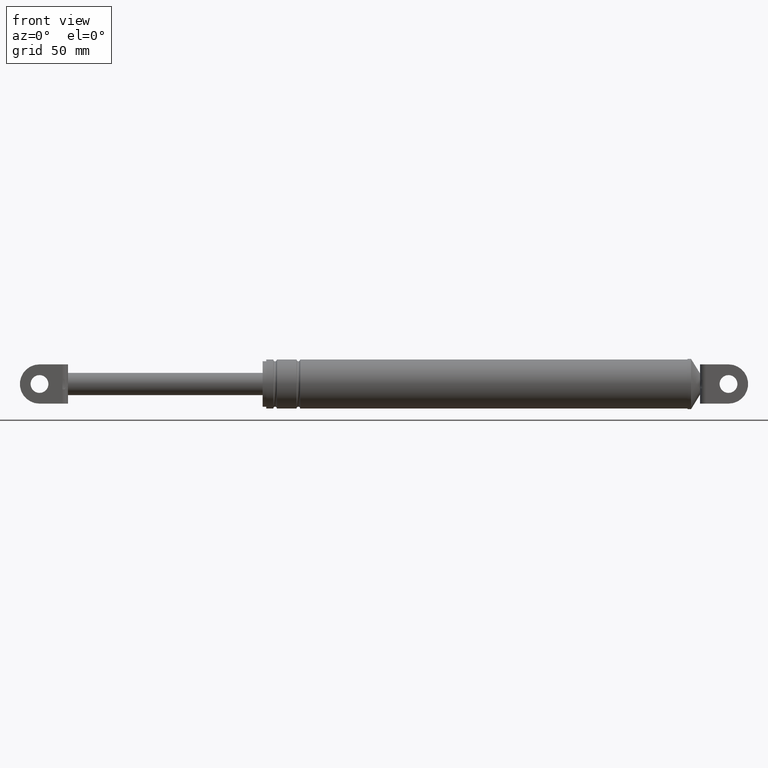
[diagram: clean part render]
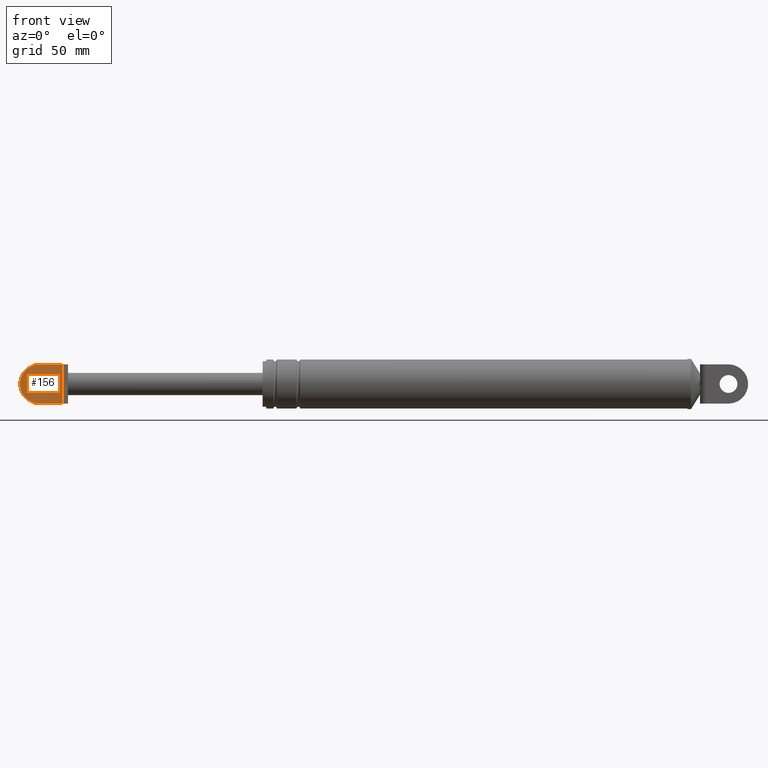
[diagram: same view with one face highlighted and labeled with its STEP entity id]
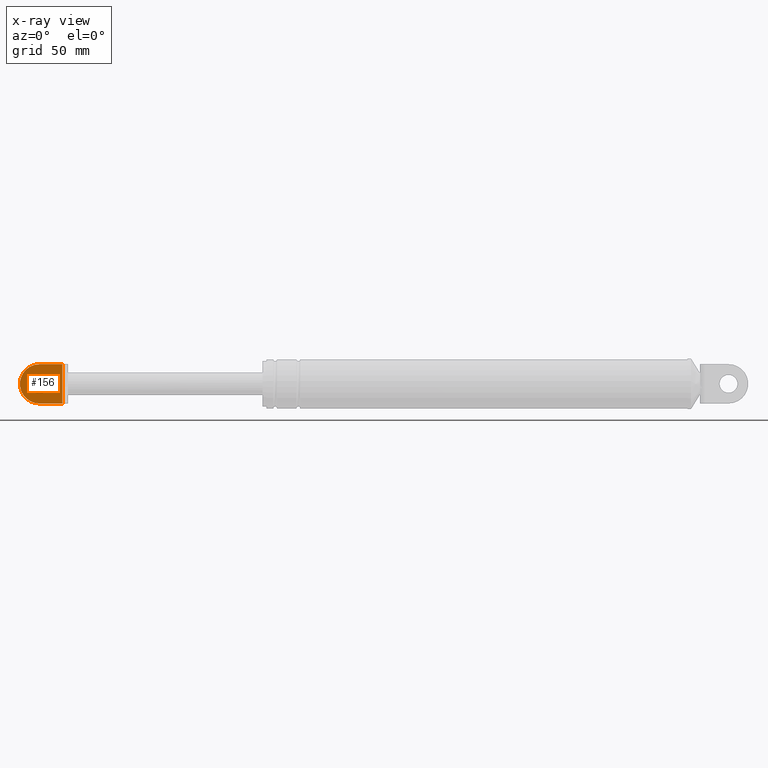
[diagram: x-ray of the same camera — body ghosted, the highlighted face saturated]
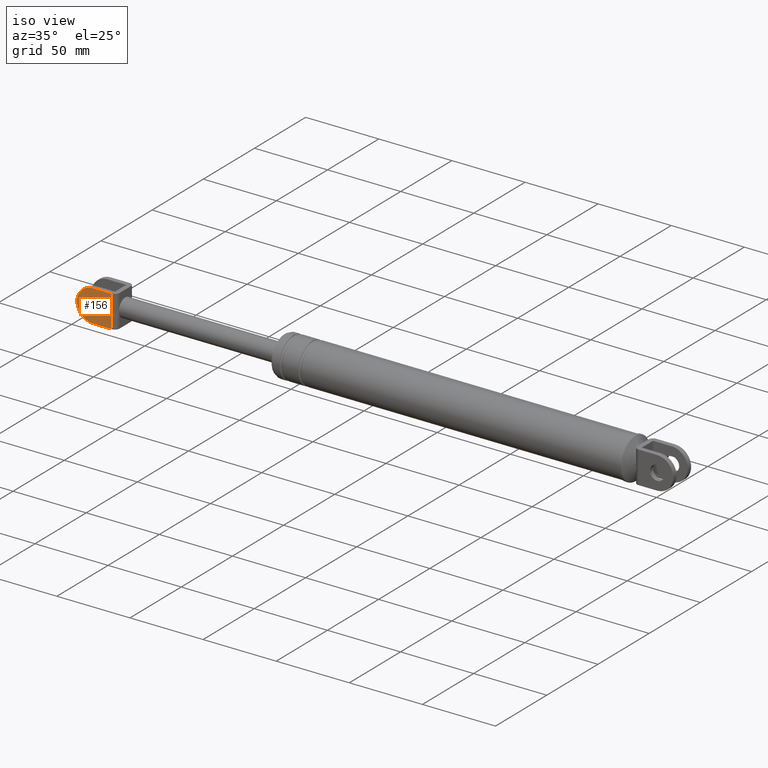
[diagram: same view with one face highlighted and labeled with its STEP entity id]
A machine part, front view. The second image highlights one B-rep face of the part: STEP entity #156.
The next image is the same camera in x-ray: the body ghosted, the highlighted face saturated — about 0% of this face is hidden behind the body in this view.
A second angle (iso view) of the same face is appended — the face is thin or edge-on in the first view.
In plain terms, the highlighted planar face has unit normal (0, -1, 0).
Its self-contained STEP definition (entity closure, byte-faithful):
#156=ADVANCED_FACE('',(#623,#624),#622,.T.);
#622=PLANE('',#1828);
#623=FACE_OUTER_BOUND('',#1829,.T.);
#624=FACE_BOUND('',#1830,.T.);
#1825=CARTESIAN_POINT('',(7.27081917270E+000,-8.69999700000E+000,1.66525493158E+002));
#1826=DIRECTION('',(0.00000000000E+000,-1.00000000000E+000,0.00000000000E+000));
#1827=DIRECTION('',(1.00000000000E+000,0.00000000000E+000,0.00000000000E+000));
#1828=AXIS2_PLACEMENT_3D('',#1825,#1826,#1827);
#1829=EDGE_LOOP('',(#2133,#2134,#2135,#2136,#2137,#2138));
#1830=EDGE_LOOP('',(#2139,#2140));
#2133=ORIENTED_EDGE('',*,*,#2349,.T.);
#2134=ORIENTED_EDGE('',*,*,#2350,.T.);
#2135=ORIENTED_EDGE('',*,*,#2348,.T.);
#2136=ORIENTED_EDGE('',*,*,#2340,.T.);
#2137=ORIENTED_EDGE('',*,*,#2351,.F.);
#2138=ORIENTED_EDGE('',*,*,#2352,.T.);
#2139=ORIENTED_EDGE('',*,*,#2353,.F.);
#2140=ORIENTED_EDGE('',*,*,#2354,.F.);
#2340=EDGE_CURVE('',#3055,#3047,#3056,.T.);
#2348=EDGE_CURVE('',#3095,#3055,#3109,.T.);
#2349=EDGE_CURVE('',#3115,#3116,#3117,.T.);
#2350=EDGE_CURVE('',#3116,#3095,#3123,.T.);
#2351=EDGE_CURVE('',#3129,#3047,#3130,.T.);
#2352=EDGE_CURVE('',#3129,#3115,#3136,.T.);
#2353=EDGE_CURVE('',#3142,#3143,#3144,.T.);
#2354=EDGE_CURVE('',#3143,#3142,#3150,.T.);
#3047=VERTEX_POINT('',#3841);
#3055=VERTEX_POINT('',#3847);
#3056=LINE('',#3848,#3849);
#3095=VERTEX_POINT('',#3879);
#3109=(BOUNDED_CURVE() B_SPLINE_CURVE(3,(#3889,#3890,#3891,#3892,#3893,#3894,#3895,#3896,#3897,#3898),.UNSPECIFIED.,.F.,.F.) B_SPLINE_CURVE_WITH_KNOTS((4,2,2,2,4),(0.00000000000E+000,1.48651353192E-003,2.97302706385E-003,4.45954059577E-003,5.94605412770E-003),.UNSPECIFIED.) CURVE() GEOMETRIC_REPRESENTATION_ITEM() RATIONAL_B_SPLINE_CURVE((1.00000000000E+000,1.00000000000E+000,1.00000000000E+000,1.00000000000E+000,1.00000000000E+000,1.00000000000E+000,1.00000000000E+000,1.00000000000E+000,1.00000000000E+000,1.00000000000E+000)) REPRESENTATION_ITEM('') );
#3115=VERTEX_POINT('',#3899);
#3116=VERTEX_POINT('',#3900);
#3117=LINE('',#3901,#3902);
#3123=LINE('',#3904,#3905);
#3129=VERTEX_POINT('',#3907);
#3130=LINE('',#3908,#3909);
#3136=CIRCLE('',#3914,1.10000000000E+001);
#3142=VERTEX_POINT('',#3915);
#3143=VERTEX_POINT('',#3916);
#3144=CIRCLE('',#3920,5.00000000000E+000);
#3150=CIRCLE('',#3924,5.00000000000E+000);
#3841=CARTESIAN_POINT('',(3.34597353584E+001,-8.69999700000E+000,1.90725493158E+002));
#3847=CARTESIAN_POINT('',(3.34597353584E+001,-8.69999700000E+000,1.82694084238E+002));
#3848=CARTESIAN_POINT('',(3.34597353584E+001,-8.69999700000E+000,1.82694084238E+002));
#3849=VECTOR('',#3850,8.03140892004E+000);
#3850=DIRECTION('',(0.00000000000E+000,0.00000000000E+000,1.00000000000E+000));
#3879=CARTESIAN_POINT('',(3.34597353584E+001,-8.69999700000E+000,1.76756902078E+002));
#3889=CARTESIAN_POINT('',(3.34597353584E+001,-8.69999700000E+000,1.76756902078E+002));
#3890=CARTESIAN_POINT('',(3.34597353584E+001,-8.69999700000E+000,1.77252407869E+002));
#3891=CARTESIAN_POINT('',(3.34853295393E+001,-8.69999700000E+000,1.77747155186E+002));
#3892=CARTESIAN_POINT('',(3.35305820261E+001,-8.69999700000E+000,1.78736721335E+002));
#3893=CARTESIAN_POINT('',(3.35488972153E+001,-8.69999700000E+000,1.79231956322E+002));
#3894=CARTESIAN_POINT('',(3.35488387764E+001,-8.69999700000E+000,1.80221723885E+002));
#3895=CARTESIAN_POINT('',(3.35304990890E+001,-8.69999700000E+000,1.80716183946E+002));
#3896=CARTESIAN_POINT('',(3.34852755390E+001,-8.69999700000E+000,1.81704906346E+002));
#3897=CARTESIAN_POINT('',(3.34597353584E+001,-8.69999700000E+000,1.82199199780E+002));
#3898=CARTESIAN_POINT('',(3.34597353584E+001,-8.69999700000E+000,1.82694084238E+002));
#3899=CARTESIAN_POINT('',(2.06597343985E+001,-8.69999700000E+000,1.68725493158E+002));
#3900=CARTESIAN_POINT('',(3.34597353584E+001,-8.69999700000E+000,1.68725493158E+002));
#3901=CARTESIAN_POINT('',(2.06597343985E+001,-8.69999700000E+000,1.68725493158E+002));
#3902=VECTOR('',#3903,1.28000009599E+001);
#3903=DIRECTION('',(1.00000000000E+000,0.00000000000E+000,0.00000000000E+000));
#3904=CARTESIAN_POINT('',(3.34597353584E+001,-8.69999700000E+000,1.68725493158E+002));
#3905=VECTOR('',#3906,8.03140892005E+000);
#3906=DIRECTION('',(0.00000000000E+000,0.00000000000E+000,1.00000000000E+000));
#3907=CARTESIAN_POINT('',(2.06597343985E+001,-8.69999700000E+000,1.90725493158E+002));
#3908=CARTESIAN_POINT('',(2.06597343985E+001,-8.69999700000E+000,1.90725493158E+002));
#3909=VECTOR('',#3910,1.28000009599E+001);
#3910=DIRECTION('',(1.00000000000E+000,0.00000000000E+000,0.00000000000E+000));
#3911=CARTESIAN_POINT('',(2.06597353584E+001,-8.69999700000E+000,1.79725493158E+002));
#3912=DIRECTION('',(0.00000000000E+000,-1.00000000000E+000,0.00000000000E+000));
#3913=DIRECTION('',(8.72664665379E-008,-0.00000000000E+000,-1.00000000000E+000));
#3914=AXIS2_PLACEMENT_3D('',#3911,#3912,#3913);
#3915=CARTESIAN_POINT('',(2.06597353584E+001,-8.69999700000E+000,1.84725493158E+002));
#3916=CARTESIAN_POINT('',(2.06597353584E+001,-8.69999700000E+000,1.74725493158E+002));
#3917=CARTESIAN_POINT('',(2.06597353584E+001,-8.69999700000E+000,1.79725493158E+002));
#3918=DIRECTION('',(0.00000000000E+000,-1.00000000000E+000,0.00000000000E+000));
#3919=DIRECTION('',(-0.00000000000E+000,-0.00000000000E+000,-1.00000000000E+000));
#3920=AXIS2_PLACEMENT_3D('',#3917,#3918,#3919);
#3921=CARTESIAN_POINT('',(2.06597353584E+001,-8.69999700000E+000,1.79725493158E+002));
#3922=DIRECTION('',(0.00000000000E+000,-1.00000000000E+000,0.00000000000E+000));
#3923=DIRECTION('',(-0.00000000000E+000,-0.00000000000E+000,-1.00000000000E+000));
#3924=AXIS2_PLACEMENT_3D('',#3921,#3922,#3923);